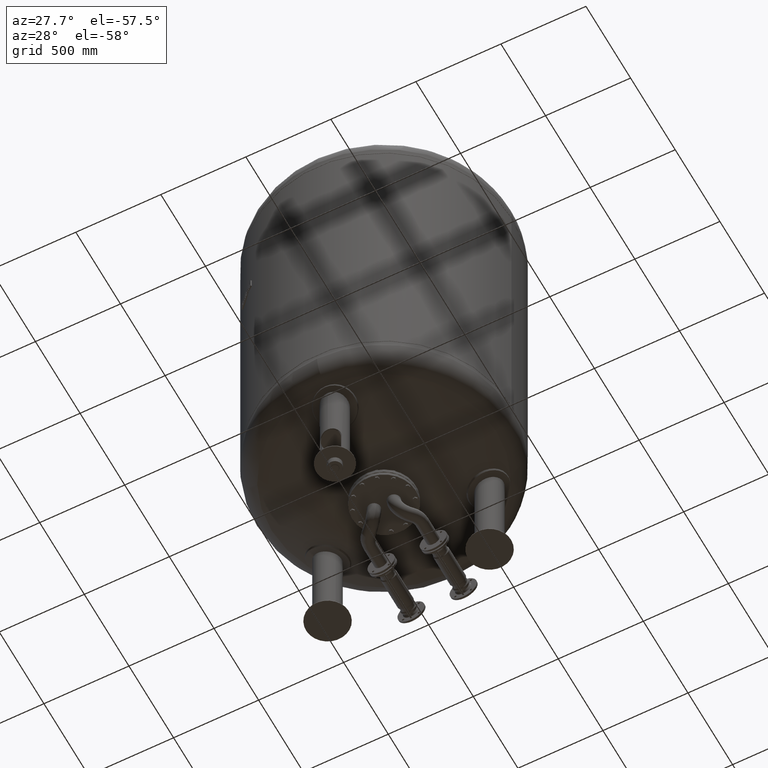
[diagram: clean part render]
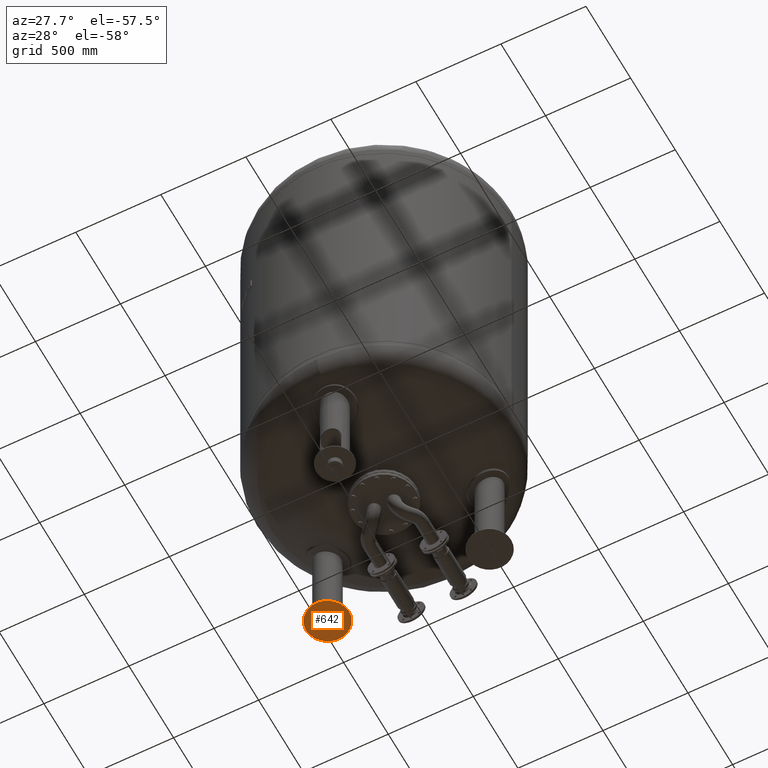
[diagram: same view with one face highlighted and labeled with its STEP entity id]
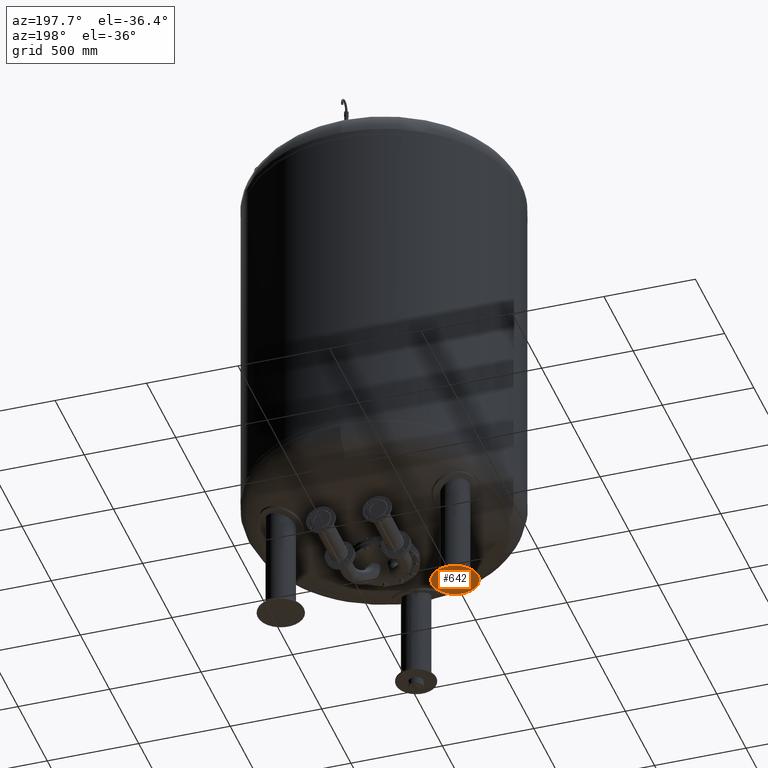
[diagram: same view with one face highlighted and labeled with its STEP entity id]
A machine part, auxiliary view. The second image highlights one B-rep face of the part: STEP entity #642.
A second angle (auxiliary view) of the same face is appended — the face is thin or edge-on in the first view.
In plain terms, the highlighted spherical surface has radius 570 mm.
Its self-contained STEP definition (entity closure, byte-faithful):
#130=CARTESIAN_POINT('',(-585.702740850055990,338.155635094881520,14.171372612881115));
#131=VERTEX_POINT('',#130);
#140=CARTESIAN_POINT('',(-366.925203312826340,211.844364905118570,14.171372612881109));
#141=VERTEX_POINT('',#140);
#142=CARTESIAN_POINT('',(-476.313972081441140,275.000000000000060,14.171372612881115));
#143=DIRECTION('',(0.0,0.0,-1.0));
#144=DIRECTION('',(-0.866025403784439,0.500000000000000,0.0));
#145=AXIS2_PLACEMENT_3D('',#142,#143,#144);
#146=CIRCLE('',#145,126.311270189762990);
#147=EDGE_CURVE('',#141,#131,#146,.T.);
#623=CARTESIAN_POINT('',(-476.313972081441140,275.000000000000060,14.171372612881115));
#624=DIRECTION('',(0.0,0.0,-1.0));
#625=DIRECTION('',(-0.866025403784439,0.500000000000000,0.0));
#626=AXIS2_PLACEMENT_3D('',#623,#624,#625);
#627=CIRCLE('',#626,126.311270189762990);
#628=EDGE_CURVE('',#131,#141,#627,.T.);
#633=CARTESIAN_POINT('',(-476.313972081441080,275.000000000000170,570.0));
#634=DIRECTION('',(0.500000000000000,0.866025403784439,-1.836970E-016));
#635=DIRECTION('',(-0.866025403784439,0.500000000000000,0.0));
#636=AXIS2_PLACEMENT_3D('',#633,#634,#635);
#637=SPHERICAL_SURFACE('',#636,570.0);
#638=ORIENTED_EDGE('',*,*,#628,.T.);
#639=ORIENTED_EDGE('',*,*,#147,.T.);
#640=EDGE_LOOP('',(#638,#639));
#641=FACE_OUTER_BOUND('',#640,.T.);
#642=ADVANCED_FACE('',(#641),#637,.T.);